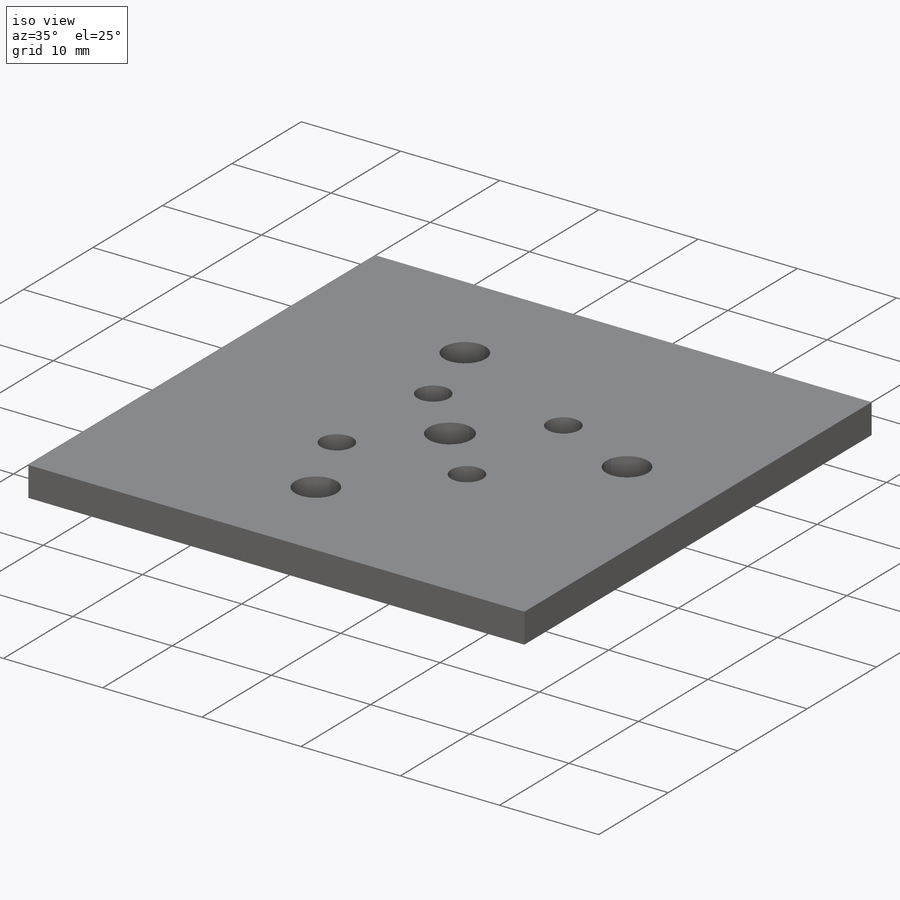
[diagram: iso view]
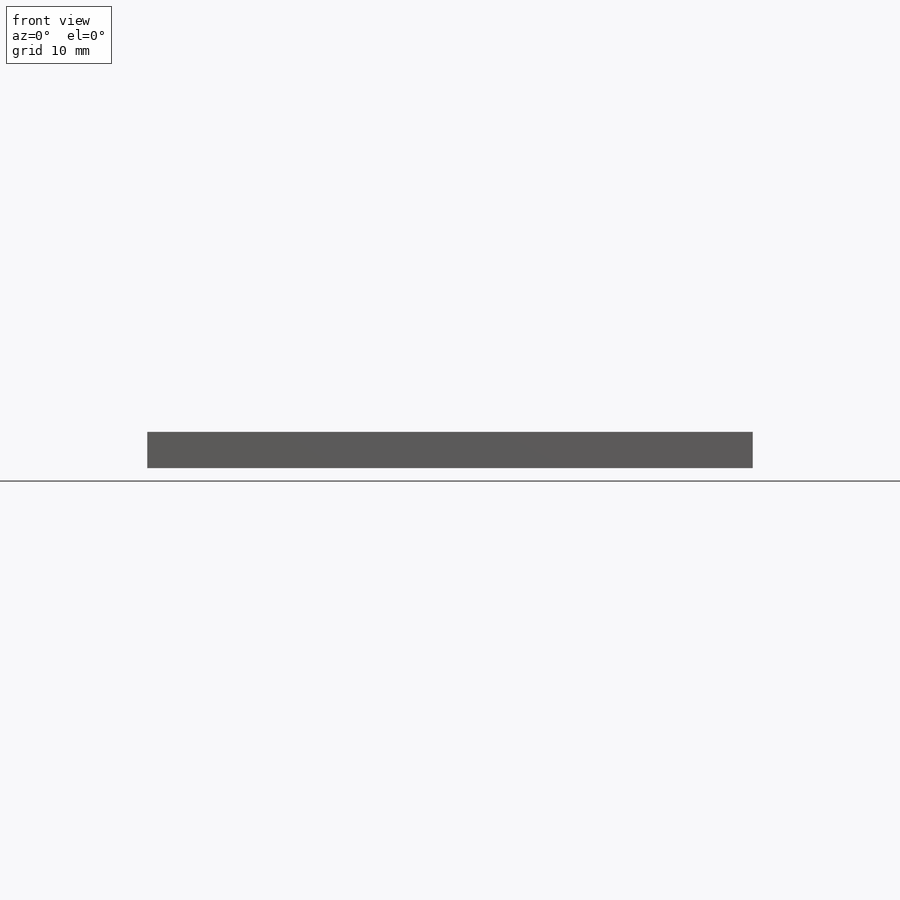
[diagram: front view]
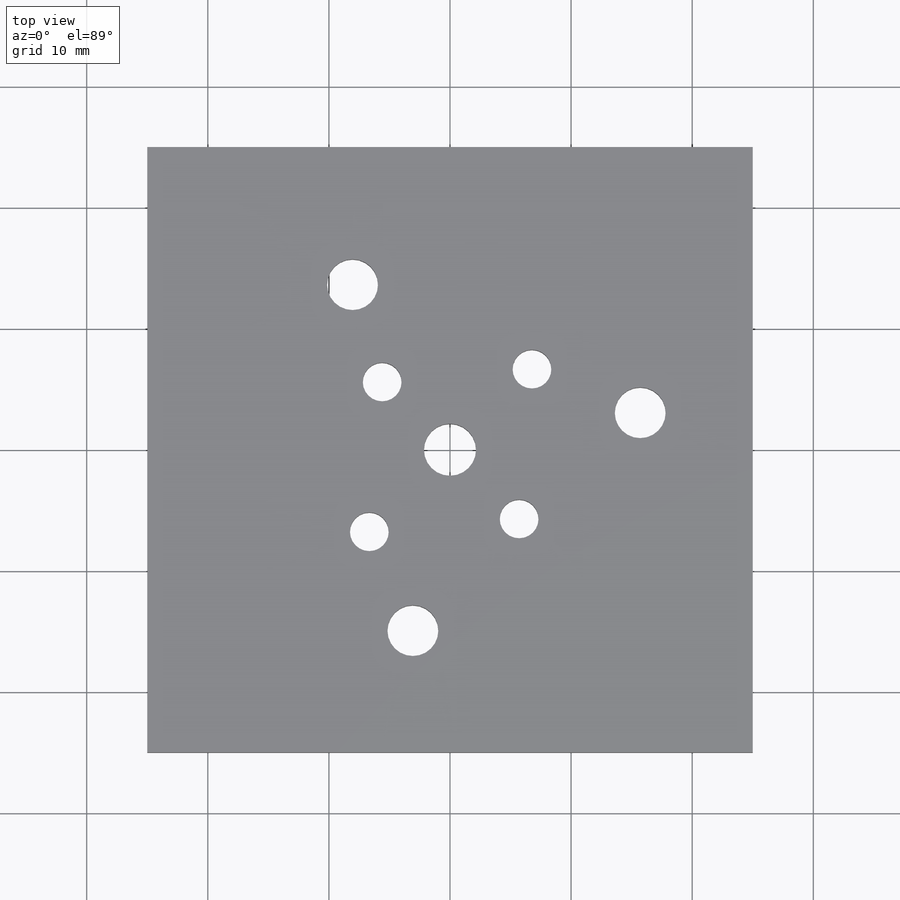
[diagram: top view]
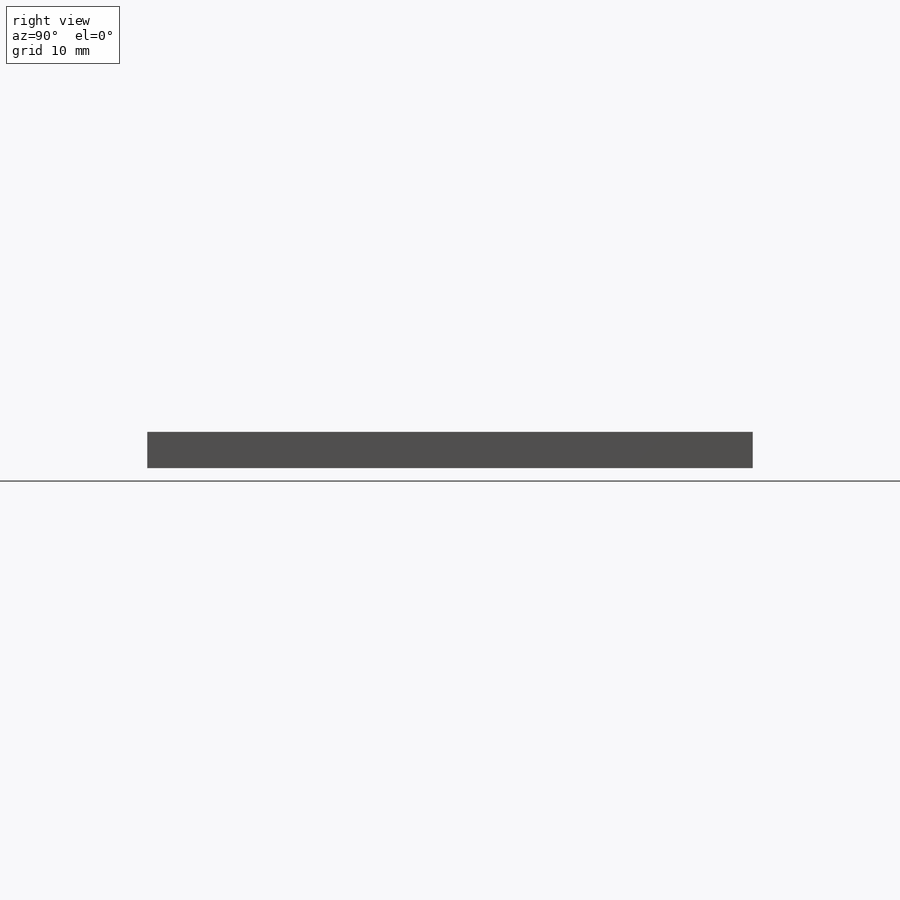
[diagram: right view]
SOLIDWORKS PART (.sldprt)
format: sldprt  version: not decoded by parser v0  size: 177,152 bytes
history: native  units: mm
features: sketch x4, cut_extrude x3, material x1, extrude x1 (+13 scaffold rows collapsed)
feature tree (22):
  scaffold x13  (default folders/planes/origin — collapsed)
  material  "Material <not specified>"
  sketch  "Sketch1"  dims[D1=50.0mm D2=50.0mm]
  extrude  "Boss-Extrude1"  Depth=3mm
  sketch  "Sketch2"  dims[D1=4.3mm]
  cut_extrude  "Cut-Extrude1"  [1 undecoded]
  sketch  "Sketch3"  dims[c1.D1=3.2mm c1.D3=3.2mm c1.D5=3.2mm c1.D7=3.2mm c1.D2=9.5mm c1.D4=9.5mm c1.D6=8.5mm c1.D8=8.5mm c1.D9=1.06mm c1.D10=12.37mm c1.D11=1.06mm c1.D12=22.37mm c2.D2=12.37mm c2.D4=1.06mm c2.D6=12.37mm c2.D8=12.37mm]
  cut_extrude  "Cut-Extrude2"  [1 undecoded]
  sketch  "Sketch4"  dims[c1.D1=~1.822128mm c1.D2=~3.054998mm c1.D4=~2.575705mm c2.D1=16.0mm c2.D2=16.5mm c2.D3=26.0mm c2.D4=13.0mm c2.D5=26.0mm c2.D6=~29.008402mm c3.D2=29.0mm c3.D4=~15.246412mm c4.D4=~162.824593deg]
  cut_extrude  "Cut-Extrude3"  [1 undecoded]
decode coverage: 5 of 8 modeling features carry decoded parameters
note: ~ marks probable driven/reference dimensions
note: 3 parameter values undecoded
summary: no parameter record found for 3 features
note: suppression state not decoded; provenance and decode notes live in map.json
